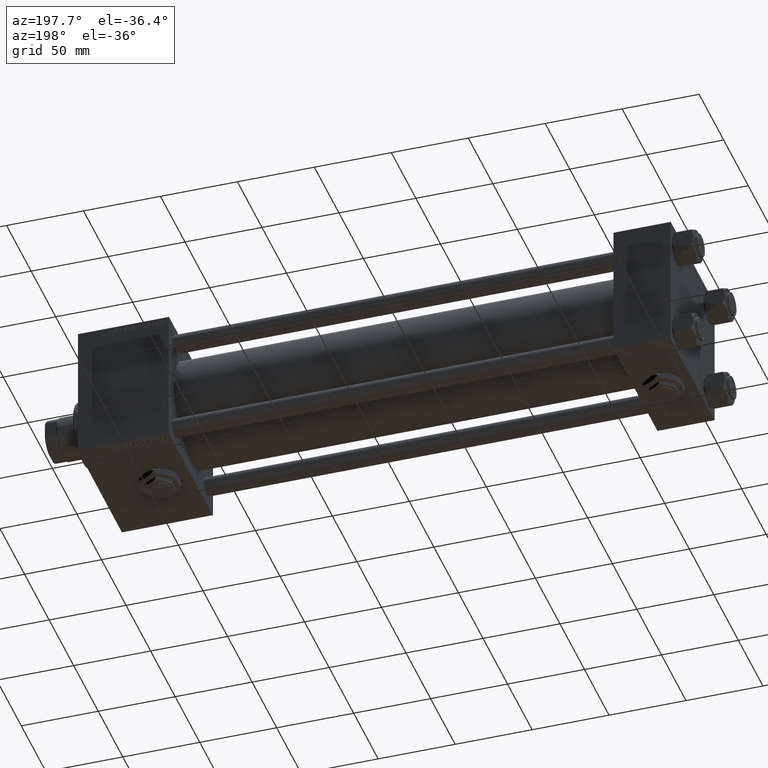
[diagram: clean part render]
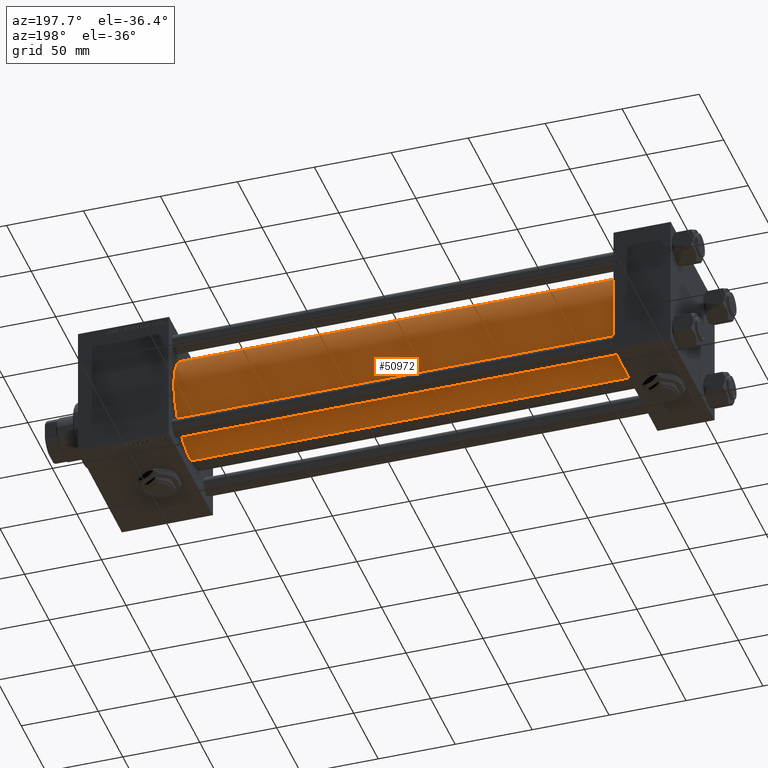
[diagram: same view with one face highlighted and labeled with its STEP entity id]
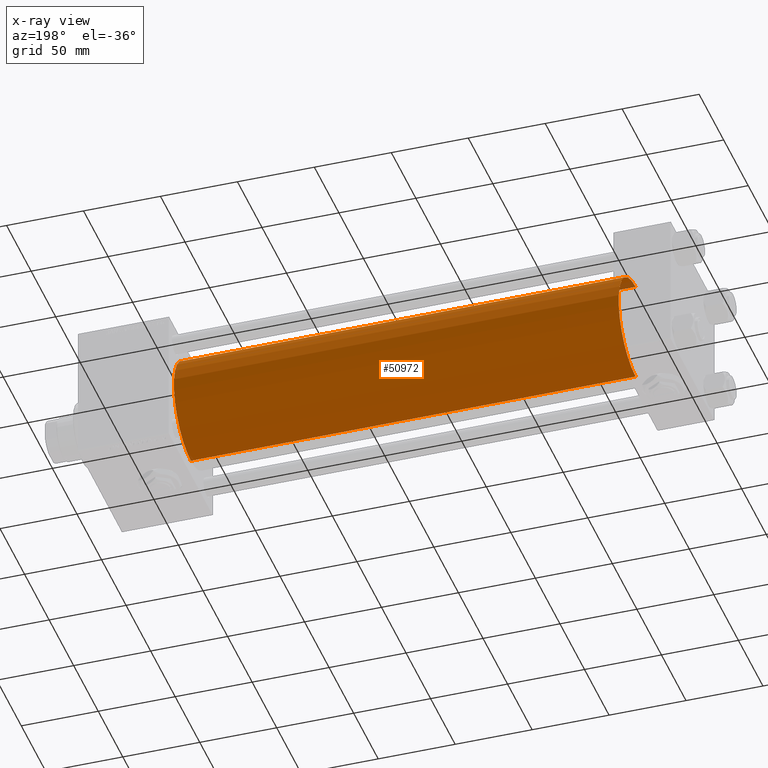
[diagram: x-ray of the same camera — body ghosted, the highlighted face saturated]
A machine part, auxiliary view. The second image highlights one B-rep face of the part: STEP entity #50972.
The next image is the same camera in x-ray: the body ghosted, the highlighted face saturated — about 0% of this face is hidden behind the body in this view.
In plain terms, the highlighted cylindrical surface (partial cylindrical patch) has radius 34.5 mm, axis along (-1, -0, -0).
Its self-contained STEP definition (entity closure, byte-faithful):
#1705 = DIRECTION ( 'NONE',  ( -1.000000000000000000, -0.000000000000000000, -0.000000000000000000 ) ) ;
#4660 = CARTESIAN_POINT ( 'NONE',  ( 325.9999999999999432, -2.602085213965210642E-15, 0.000000000000000000 ) ) ;
#6816 = VERTEX_POINT ( 'NONE', #23676 ) ;
#7027 = EDGE_CURVE ( 'NONE', #10712, #19070, #37927, .T. ) ;
#7048 = EDGE_LOOP ( 'NONE', ( #26253, #42216, #42099, #12985 ) ) ;
#9732 = CARTESIAN_POINT ( 'NONE',  ( 325.9999999999999432, 1.622946243093158675E-15, -34.50000000000000000 ) ) ;
#10712 = VERTEX_POINT ( 'NONE', #30037 ) ;
#12985 = ORIENTED_EDGE ( 'NONE', *, *, #7027, .F. ) ;
#13063 = EDGE_CURVE ( 'NONE', #6816, #19070, #23946, .T. ) ;
#13080 = VERTEX_POINT ( 'NONE', #9732 ) ;
#15409 = CARTESIAN_POINT ( 'NONE',  ( 325.9999999999999432, 1.622946243093158675E-15, -34.50000000000000000 ) ) ;
#16874 = EDGE_CURVE ( 'NONE', #13080, #10712, #45895, .T. ) ;
#19070 = VERTEX_POINT ( 'NONE', #37137 ) ;
#19315 = EDGE_CURVE ( 'NONE', #13080, #6816, #27842, .T. ) ;
#20547 = AXIS2_PLACEMENT_3D ( 'NONE', #29824, #34574, #22665 ) ;
#22665 = DIRECTION ( 'NONE',  ( 0.000000000000000000, 0.000000000000000000, 1.000000000000000000 ) ) ;
#23676 = CARTESIAN_POINT ( 'NONE',  ( 36.99999999999997868, 1.622946243093158675E-15, -34.50000000000000000 ) ) ;
#23946 = CIRCLE ( 'NONE', #20547, 34.50000000000000000 ) ;
#26060 = CARTESIAN_POINT ( 'NONE',  ( 325.9999999999999432, -2.602085213965210642E-15, 0.000000000000000000 ) ) ;
#26253 = ORIENTED_EDGE ( 'NONE', *, *, #16874, .F. ) ;
#27842 = LINE ( 'NONE', #15409, #40936 ) ;
#29824 = CARTESIAN_POINT ( 'NONE',  ( 36.99999999999997868, -2.602085213965210642E-15, 0.000000000000000000 ) ) ;
#30037 = CARTESIAN_POINT ( 'NONE',  ( 325.9999999999999432, -2.602085213965210642E-15, 34.50000000000000000 ) ) ;
#32695 = CYLINDRICAL_SURFACE ( 'NONE', #47274, 34.50000000000000000 ) ;
#34574 = DIRECTION ( 'NONE',  ( 1.000000000000000000, -0.000000000000000000, 0.000000000000000000 ) ) ;
#35759 = AXIS2_PLACEMENT_3D ( 'NONE', #26060, #41666, #50634 ) ;
#36922 = DIRECTION ( 'NONE',  ( -1.000000000000000000, -0.000000000000000000, -0.000000000000000000 ) ) ;
#37137 = CARTESIAN_POINT ( 'NONE',  ( 36.99999999999997868, -2.602085213965210642E-15, 34.50000000000000000 ) ) ;
#37927 = LINE ( 'NONE', #50875, #49888 ) ;
#40936 = VECTOR ( 'NONE', #44495, 1000.000000000000000 ) ;
#41425 = DIRECTION ( 'NONE',  ( 0.000000000000000000, 0.000000000000000000, 1.000000000000000000 ) ) ;
#41666 = DIRECTION ( 'NONE',  ( 1.000000000000000000, 0.000000000000000000, 0.000000000000000000 ) ) ;
#42099 = ORIENTED_EDGE ( 'NONE', *, *, #13063, .T. ) ;
#42216 = ORIENTED_EDGE ( 'NONE', *, *, #19315, .T. ) ;
#44495 = DIRECTION ( 'NONE',  ( -1.000000000000000000, -0.000000000000000000, -0.000000000000000000 ) ) ;
#45399 = FACE_OUTER_BOUND ( 'NONE', #7048, .T. ) ;
#45895 = CIRCLE ( 'NONE', #35759, 34.50000000000000000 ) ;
#47274 = AXIS2_PLACEMENT_3D ( 'NONE', #4660, #36922, #41425 ) ;
#49888 = VECTOR ( 'NONE', #1705, 1000.000000000000000 ) ;
#50634 = DIRECTION ( 'NONE',  ( 0.000000000000000000, 0.000000000000000000, -1.000000000000000000 ) ) ;
#50875 = CARTESIAN_POINT ( 'NONE',  ( 325.9999999999999432, -2.602085213965210642E-15, 34.50000000000000000 ) ) ;
#50972 = ADVANCED_FACE ( 'NONE', ( #45399 ), #32695, .T. ) ;